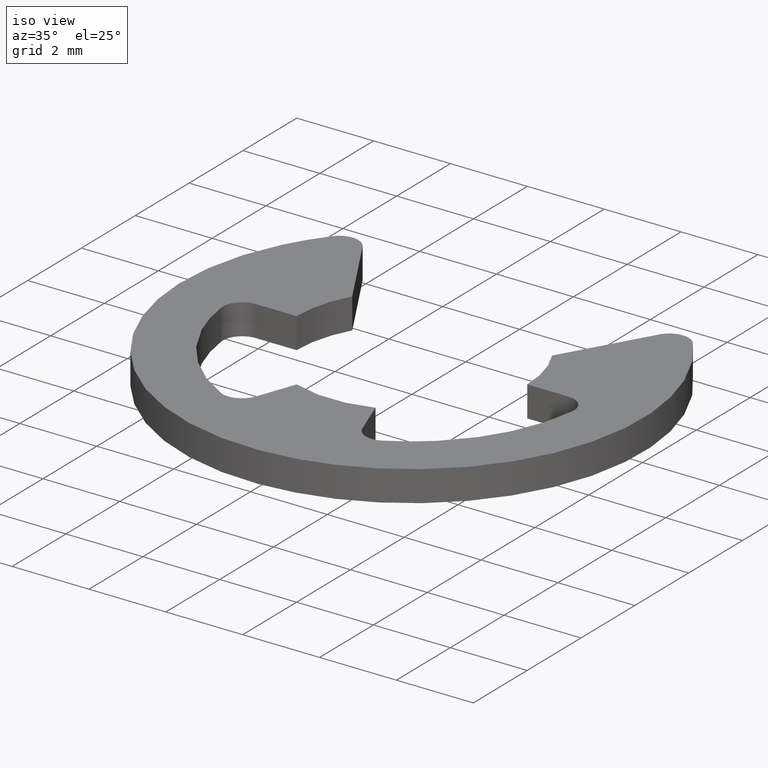
[diagram: clean part render]
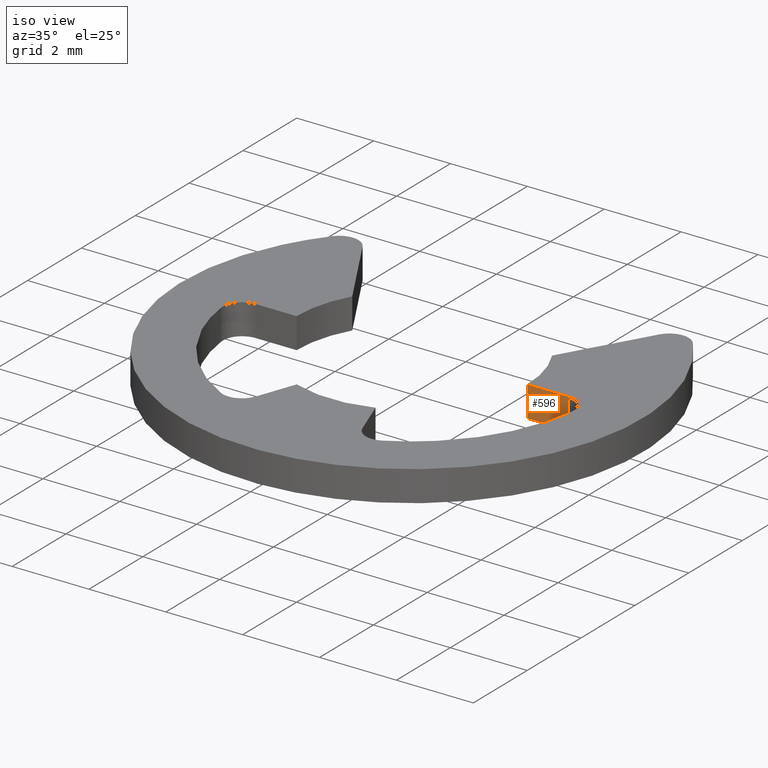
[diagram: same view with one face highlighted and labeled with its STEP entity id]
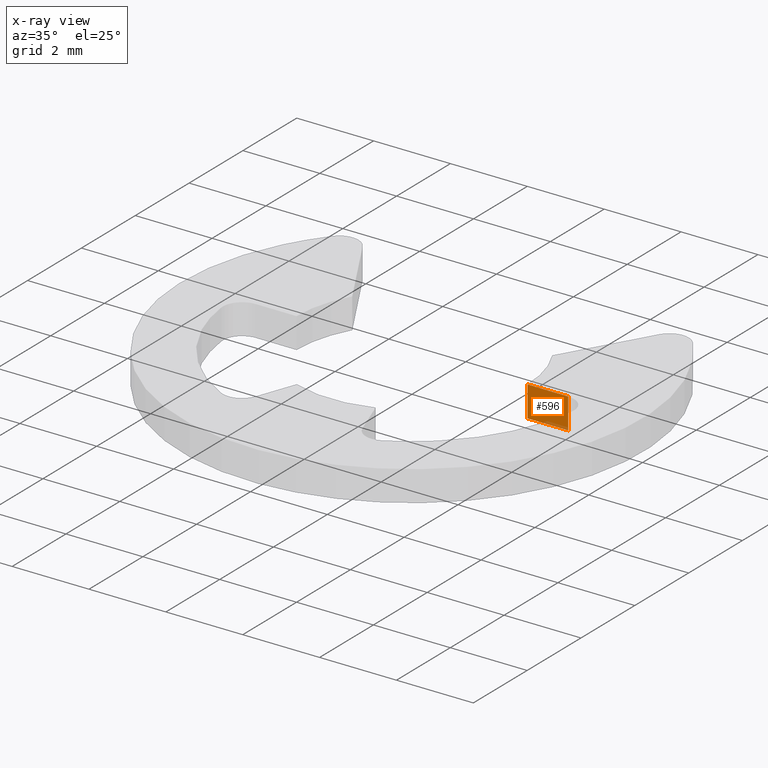
[diagram: x-ray of the same camera — body ghosted, the highlighted face saturated]
A machine part, iso view. The second image highlights one B-rep face of the part: STEP entity #596.
The next image is the same camera in x-ray: the body ghosted, the highlighted face saturated — about 5% of this face is hidden behind the body in this view.
In plain terms, the highlighted face is a freeform B-spline surface patch.
Its self-contained STEP definition (entity closure, byte-faithful):
#243=CARTESIAN_POINT('',(4.069397157079631,-2.464695E-014,0.0));
#244=VERTEX_POINT('',#243);
#260=CARTESIAN_POINT('',(3.0,0.0,0.0));
#261=VERTEX_POINT('',#260);
#262=CARTESIAN_POINT('',(4.069397157079631,-2.464695E-014,0.0));
#263=CARTESIAN_POINT('',(3.0,0.0,0.0));
#264=QUASI_UNIFORM_CURVE('',1,(#262,#263),.UNSPECIFIED.,.F.,.U.);
#265=EDGE_CURVE('',#244,#261,#264,.T.);
#321=CARTESIAN_POINT('',(3.0,0.0,0.799987999999918));
#322=VERTEX_POINT('',#321);
#336=CARTESIAN_POINT('',(4.069397157079631,-2.464695E-014,0.799987999999918));
#337=VERTEX_POINT('',#336);
#338=CARTESIAN_POINT('',(4.069397157079631,-2.464695E-014,0.799987999999918));
#339=CARTESIAN_POINT('',(3.0,0.0,0.799987999999918));
#340=QUASI_UNIFORM_CURVE('',1,(#338,#339),.UNSPECIFIED.,.F.,.U.);
#341=EDGE_CURVE('',#337,#322,#340,.T.);
#571=CARTESIAN_POINT('',(3.0,0.0,0.799987999999918));
#572=CARTESIAN_POINT('',(3.0,0.0,0.0));
#573=QUASI_UNIFORM_CURVE('',1,(#571,#572),.UNSPECIFIED.,.F.,.U.);
#574=EDGE_CURVE('',#322,#261,#573,.T.);
#581=CARTESIAN_POINT('',(2.946583625538485,0.0,0.839947369010522));
#582=CARTESIAN_POINT('',(2.946583625538485,0.0,-0.039959419077755));
#583=CARTESIAN_POINT('',(4.122813330756877,0.0,0.839947369010522));
#584=CARTESIAN_POINT('',(4.122813330756877,0.0,-0.039959419077755));
#585=B_SPLINE_SURFACE_WITH_KNOTS('',1,1,((#581,#583),(#582,#584)),.UNSPECIFIED.,.F.,.F.,.U.,(2,2),(2,2),(0.041708366239443,0.958291685914621),(0.041708343880251,0.958291499657556),.UNSPECIFIED.);
#586=ORIENTED_EDGE('',*,*,#265,.F.);
#587=CARTESIAN_POINT('',(4.069397157079631,-2.464695E-014,0.799987999999918));
#588=CARTESIAN_POINT('',(4.069397157079631,-2.464695E-014,0.0));
#589=QUASI_UNIFORM_CURVE('',1,(#587,#588),.UNSPECIFIED.,.F.,.U.);
#590=EDGE_CURVE('',#337,#244,#589,.T.);
#591=ORIENTED_EDGE('',*,*,#590,.F.);
#592=ORIENTED_EDGE('',*,*,#341,.T.);
#593=ORIENTED_EDGE('',*,*,#574,.T.);
#594=EDGE_LOOP('',(#586,#591,#592,#593));
#595=FACE_OUTER_BOUND('',#594,.T.);
#596=ADVANCED_FACE('',(#595),#585,.T.);